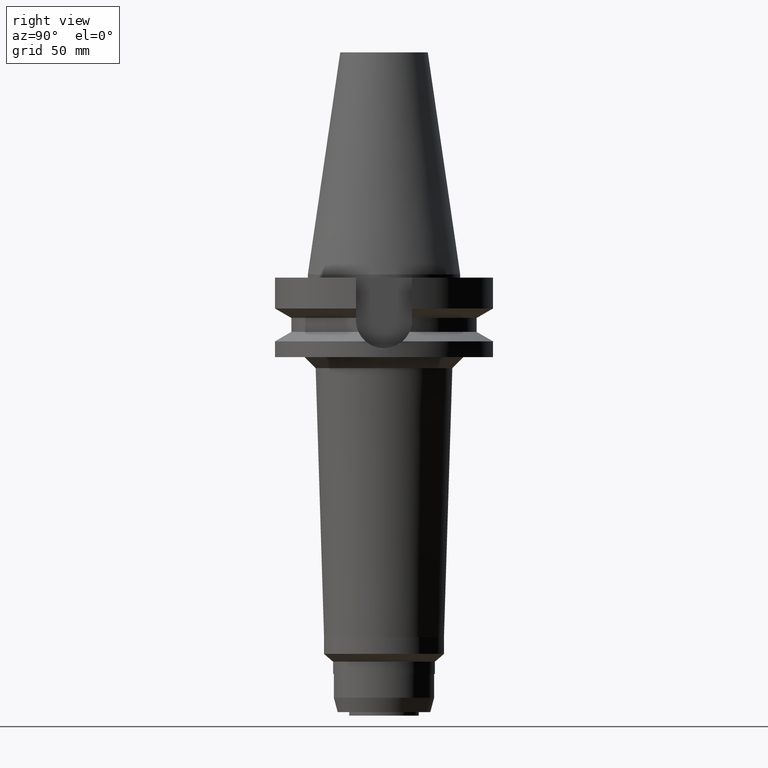
[diagram: clean part render]
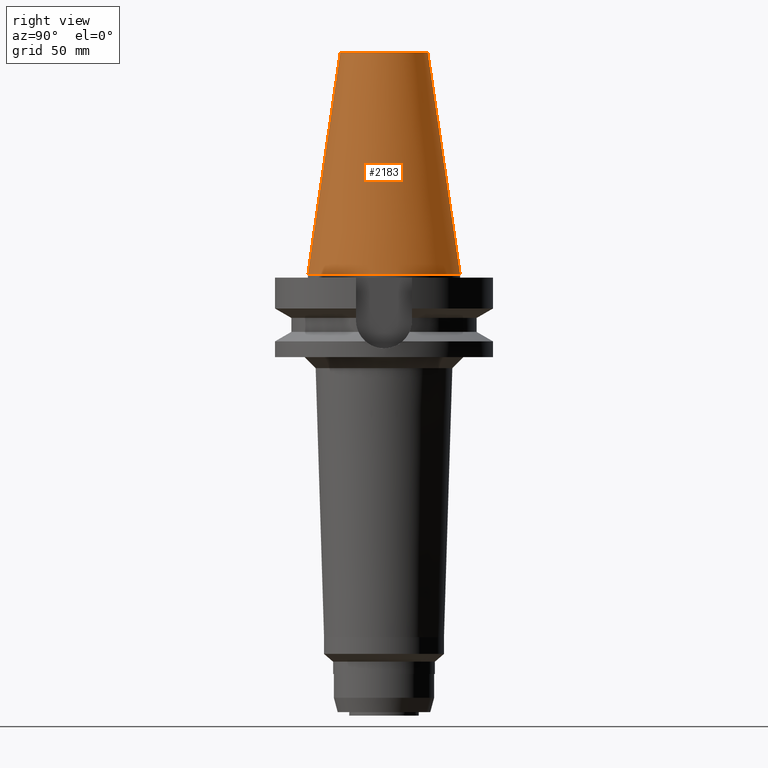
[diagram: same view with one face highlighted and labeled with its STEP entity id]
A machine part, right view. The second image highlights one B-rep face of the part: STEP entity #2183.
In plain terms, the highlighted conical surface has half-angle 8.297 deg.
Its self-contained STEP definition (entity closure, byte-faithful):
#1066=DIRECTION('',(0.E0,-1.443043893539E-1,-9.895333461856E-1));
#1067=VECTOR('',#1066,1.028767755957E2);
#1068=CARTESIAN_POINT('',(0.E0,-2.007942971896E1,1.018E2));
#1069=LINE('',#1068,#1067);
#1081=DIRECTION('',(0.E0,1.443043893539E-1,-9.895333461856E-1));
#1082=VECTOR('',#1081,1.028767755957E2);
#1083=CARTESIAN_POINT('',(0.E0,2.007942971896E1,1.018E2));
#1084=LINE('',#1083,#1082);
#1088=CARTESIAN_POINT('',(0.E0,1.847992019913E-14,3.979039320257E-13));
#1089=DIRECTION('',(0.E0,0.E0,-1.E0));
#1090=DIRECTION('',(0.E0,1.E0,0.E0));
#1091=AXIS2_PLACEMENT_3D('',#1088,#1089,#1090);
#1104=CARTESIAN_POINT('',(0.E0,1.847992019913E-14,1.018E2));
#1105=DIRECTION('',(0.E0,0.E0,-1.E0));
#1106=DIRECTION('',(0.E0,1.E0,0.E0));
#1107=AXIS2_PLACEMENT_3D('',#1104,#1105,#1106);
#1285=CARTESIAN_POINT('',(0.E0,3.4925E1,5.471179065353E-13));
#1286=VERTEX_POINT('',#1285);
#1287=CARTESIAN_POINT('',(0.E0,-3.4925E1,5.471179065353E-13));
#1288=VERTEX_POINT('',#1287);
#1289=CARTESIAN_POINT('',(0.E0,2.007942971896E1,1.018E2));
#1290=VERTEX_POINT('',#1289);
#1291=CARTESIAN_POINT('',(0.E0,-2.007942971896E1,1.018E2));
#1292=VERTEX_POINT('',#1291);
#2171=CARTESIAN_POINT('',(0.E0,1.847992019913E-14,5.09E1));
#2172=DIRECTION('',(0.E0,0.E0,-1.E0));
#2173=DIRECTION('',(0.E0,-1.E0,0.E0));
#2174=AXIS2_PLACEMENT_3D('',#2171,#2172,#2173);
#2175=CONICAL_SURFACE('',#2174,2.750221485948E1,8.297E0);
#2176=ORIENTED_EDGE('',*,*,#2161,.T.);
#2177=ORIENTED_EDGE('',*,*,#2138,.T.);
#2178=ORIENTED_EDGE('',*,*,#2165,.F.);
#2180=ORIENTED_EDGE('',*,*,#2179,.F.);
#2181=EDGE_LOOP('',(#2176,#2177,#2178,#2180));
#2182=FACE_OUTER_BOUND('',#2181,.F.);
#1092=CIRCLE('',#1091,3.4925E1);
#1108=CIRCLE('',#1107,2.007942971896E1);
#2138=EDGE_CURVE('',#1286,#1288,#1092,.T.);
#2161=EDGE_CURVE('',#1290,#1286,#1084,.T.);
#2165=EDGE_CURVE('',#1292,#1288,#1069,.T.);
#2179=EDGE_CURVE('',#1290,#1292,#1108,.T.);
#2183=ADVANCED_FACE('',(#2182),#2175,.T.);